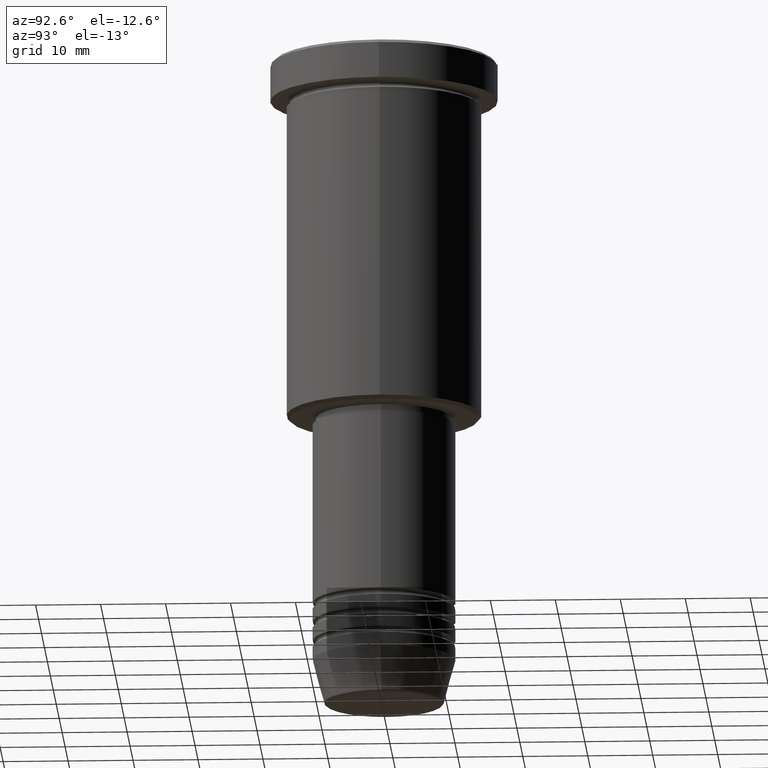
[diagram: clean part render]
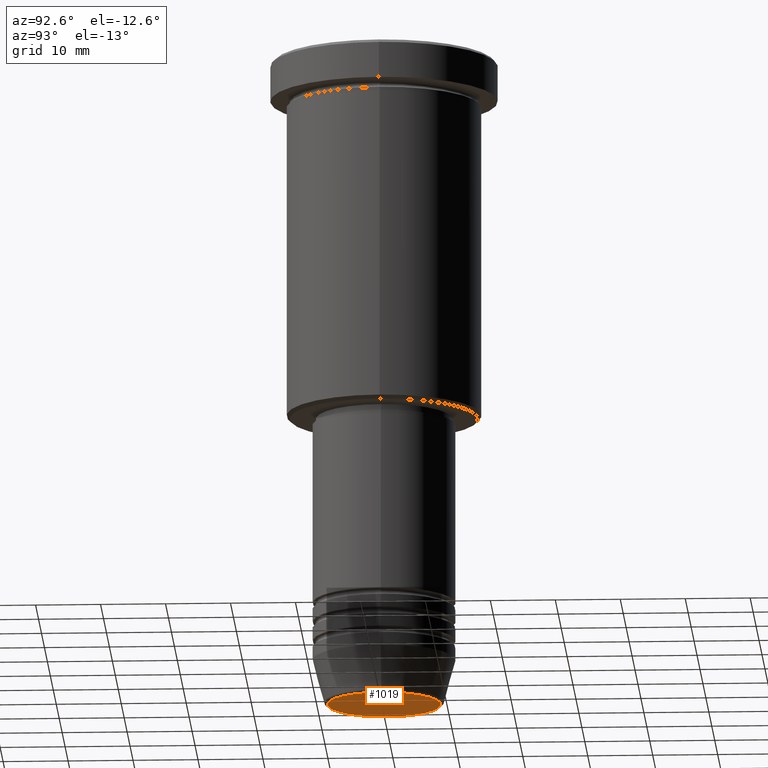
[diagram: same view with one face highlighted and labeled with its STEP entity id]
A machine part, auxiliary view. The second image highlights one B-rep face of the part: STEP entity #1019.
In plain terms, the highlighted planar face has unit normal (0, -0, 1).
Its self-contained STEP definition (entity closure, byte-faithful):
#2 = EDGE_CURVE ( 'NONE', #337, #522, #307, .T. ) ;
#32 = CARTESIAN_POINT ( 'NONE',  ( 8.740692158992652949, 0.000000000000000000, -101.0000000000000000 ) ) ;
#40 = ORIENTED_EDGE ( 'NONE', *, *, #2, .T. ) ;
#41 = DIRECTION ( 'NONE',  ( 0.000000000000000000, -0.000000000000000000, 1.000000000000000000 ) ) ;
#83 = CARTESIAN_POINT ( 'NONE',  ( -8.740692158992652949, 1.099999016768739259E-15, -101.0000000000000000 ) ) ;
#118 = DIRECTION ( 'NONE',  ( 1.000000000000000000, 0.000000000000000000, 0.000000000000000000 ) ) ;
#267 = CARTESIAN_POINT ( 'NONE',  ( 0.000000000000000000, 0.000000000000000000, -101.0000000000000000 ) ) ;
#307 = CIRCLE ( 'NONE', #518, 8.740692158992652949 ) ;
#326 = DIRECTION ( 'NONE',  ( 1.000000000000000000, 0.000000000000000000, 0.000000000000000000 ) ) ;
#337 = VERTEX_POINT ( 'NONE', #83 ) ;
#405 = DIRECTION ( 'NONE',  ( 1.000000000000000000, 0.000000000000000000, 0.000000000000000000 ) ) ;
#406 = CIRCLE ( 'NONE', #427, 8.740692158992652949 ) ;
#427 = AXIS2_PLACEMENT_3D ( 'NONE', #874, #491, #326 ) ;
#486 = FACE_OUTER_BOUND ( 'NONE', #951, .T. ) ;
#491 = DIRECTION ( 'NONE',  ( 0.000000000000000000, 0.000000000000000000, -1.000000000000000000 ) ) ;
#518 = AXIS2_PLACEMENT_3D ( 'NONE', #267, #541, #118 ) ;
#522 = VERTEX_POINT ( 'NONE', #32 ) ;
#541 = DIRECTION ( 'NONE',  ( 0.000000000000000000, 0.000000000000000000, -1.000000000000000000 ) ) ;
#650 = CARTESIAN_POINT ( 'NONE',  ( 0.000000000000000000, 0.000000000000000000, -101.0000000000000000 ) ) ;
#699 = AXIS2_PLACEMENT_3D ( 'NONE', #650, #41, #405 ) ;
#765 = PLANE ( 'NONE',  #699 ) ;
#874 = CARTESIAN_POINT ( 'NONE',  ( 0.000000000000000000, 0.000000000000000000, -101.0000000000000000 ) ) ;
#898 = ORIENTED_EDGE ( 'NONE', *, *, #1120, .T. ) ;
#951 = EDGE_LOOP ( 'NONE', ( #898, #40 ) ) ;
#1019 = ADVANCED_FACE ( 'NONE', ( #486 ), #765, .F. ) ;
#1120 = EDGE_CURVE ( 'NONE', #522, #337, #406, .T. ) ;